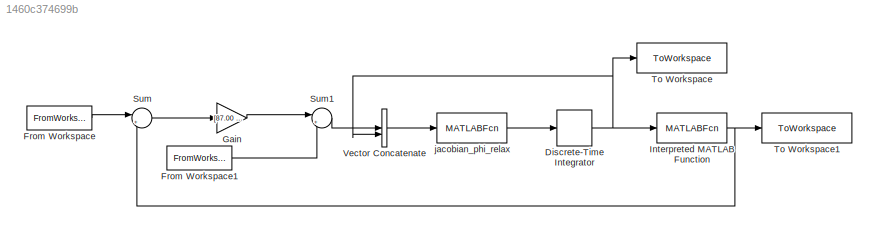
MODEL mdl_1460c374699b
KIND model
CONFIG AbsTol = auto
CONFIG EnableMultiTasking = off
CONFIG FixedStep = 0.001
CONFIG MaxStep = auto
CONFIG MinStep = auto
CONFIG RelTol = 1e-3
CONFIG SampleTimeConstraint = Unconstrained
CONFIG SolverName = ode1
CONFIG StartTime = 0.0
CONFIG StopTime = 4
BLOCK [DiscreteIntegrator] Discrete-Time Integrator
  ICPrevOutput = DiscIntNeverNeededParam
  ICPrevScaledInput = DiscIntNeverNeededParam
  InitialCondition = q0
  InitialConditionSetting = Auto
  SampleTime = Tc
BLOCK [FromWorkspace] From Workspace
  VariableName = [t,pd]
BLOCK [FromWorkspace] From Workspace1
  SampleTime = Tc
  VariableName = [t,pd_dot]
BLOCK [Gain] Gain
  Gain = [87.00 0 0 ;0 89.00 0 ;0 0 75.00 ]
  Multiplication = Matrix(K*u)
BLOCK [MATLABFcn] Interpreted MATLAB Function
  MATLABFcn = direct_kin
  OutputDimensions = 3
  OutputSignalType = real
BLOCK [Sum] Sum
  Inputs = |+-
BLOCK [Sum] Sum1
  Inputs = |++
BLOCK [ToWorkspace] To Workspace
  FixptAsFi = on
  MaxDataPoints = inf
  SampleTime = -1
  VariableName = result_joint
BLOCK [ToWorkspace] To Workspace1
  FixptAsFi = on
  MaxDataPoints = inf
  SampleTime = -1
  VariableName = result_coordinate
BLOCK [Concatenate] Vector Concatenate
BLOCK [MATLABFcn] jacobian_phi_relax
  MATLABFcn = jacobian_phi_relax
NET Discrete-Time Integrator:1 -> Interpreted MATLAB Function:1, To Workspace:1, Vector Concatenate:2
LINE From Workspace1:1 -> Sum1:2
LINE From Workspace:1 -> Sum:1
LINE Gain:1 -> Sum1:1
NET Interpreted MATLAB Function:1 -> Sum:2, To Workspace1:1
LINE Sum1:1 -> Vector Concatenate:1
LINE Sum:1 -> Gain:1
LINE Vector Concatenate:1 -> jacobian_phi_relax:1
LINE jacobian_phi_relax:1 -> Discrete-Time Integrator:1
note: NET lines group one-source signal fan-out (src -> all destinations, sorted); 1:1 wires keep LINE
